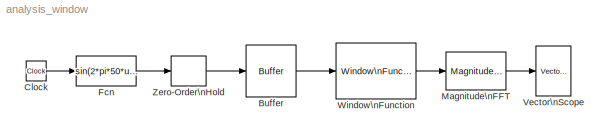
MODEL analysis_window
KIND model
BLOCK [Buffer] Buffer
  N = 256
  OutputFrames = off
  SID = 4
BLOCK [Clock] Clock
  Decimation = 1000
  SID = 1
BLOCK [Fcn] Fcn
  Expr = sin(2*pi*50*u)+0.7*cos(2*pi*75*u)
  SID = 2
BLOCK [Reference] Magnitude\nFFT  REF=dspspect3/Magnitude\nFFT
  FFTImplementation = Auto
  Ports = [1, 1]
  SID = 7
  SourceBlock = dspspect3/Magnitude\nFFT
  SourceProductBaseCode = DS
  SourceProductName = DSP System Toolbox
  SourceType = Magnitude FFT
  WrapInput = on
  fftLenInherit = off
  fftsize = 256
  mag_or_magsq = Magnitude squared
BLOCK [Reference] Vector\nScope  REF=dspsnks4/Vector\nScope
  AxisGrid = on
  AxisLegend = off
  AxisProperties = off
  AxisZoom = off
  DisplayProperties = off
  Domain = Frequency
  FigPos = get(0,'defaultfigureposition')
  FrameNumber = on
  HorizSpan = 1
  InheritXIncr = on
  LineProperties = off
  Memory = off
  OpenScopeAtSimStart = on
  OpenScopeImmediately = off
  Ports = [1]
  SID = 8
  ScopeProperties = on
  ShowPortLabels = off
  SourceBlock = dspsnks4/Vector\nScope
  SourceProductBaseCode = DS
  SourceProductName = DSP System Toolbox
  SourceType = Vector Scope
  XAxisParamsVer = 6.9
  XIncr = 1
  XLabel = Time
  XLimit = Auto
  XMax = 1
  XMin = 0
  XRange = [0...Fs/2]
  XStart = 0
  XUnits = Hertz
  YLabel = Amplitude
  YMax = 10
  YMin = -10
  YUnits = dB
BLOCK [Reference] Window\nFunction  REF=dspsigops/Window\nFunction
  LockScale = off
  N = 64
  OptParams = off
  Ports = [1, 1]
  Rs = 50
  SID = 6
  SourceBlock = dspsigops/Window\nFunction
  SourceProductBaseCode = DS
  SourceProductName = DSP System Toolbox
  SourceType = Window Function
  UserParams = {'symmetric'}
  UserWindow = hamming
  additionalParams = off
  allowOverrides = on
  beta = 10
  dataType = double
  firstCoeffFracLength = 15
  firstCoeffMode = Same word length as input
  firstCoeffWordLength = 16
  fracBitsMode = Best precision
  isSigned = on
  numFracBits = 15
  numSidelobes = 4
  outputFracLength = 15
  outputMode = Same as product output
  outputWordLength = 16
  overflowMode = off
  prodOutputFracLength = 15
  prodOutputMode = Inherit via internal rule
  prodOutputWordLength = 16
  roundingMode = Floor
  sampmode = Continuous
  samptime = 1
  sidelobeLevel = -30
  udDataType = sfix(16)
  winmode = Apply window to input
  winsamp = Symmetric
  wintype = Hamming
  wordLen = 16
BLOCK [ZeroOrderHold] Zero-Order\nHold
  SID = 3
  SampleTime = 0.001
LINE Buffer:1 -> Window\nFunction:1
LINE Clock:1 -> Fcn:1
LINE Fcn:1 -> Zero-Order\nHold:1
LINE Magnitude\nFFT:1 -> Vector\nScope:1
LINE Window\nFunction:1 -> Magnitude\nFFT:1
LINE Zero-Order\nHold:1 -> Buffer:1
